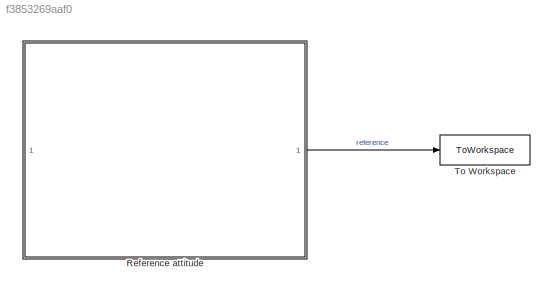
MODEL slx_f3853269aaf0
KIND model
CONFIG AbsTol = auto
CONFIG EnableMultiTasking = off
CONFIG FixedStep = auto
CONFIG MaxStep = auto
CONFIG MinStep = auto
CONFIG RelTol = 1e-3
CONFIG SampleTimeConstraint = Unconstrained
CONFIG SolverName = VariableStepAuto
CONFIG StartTime = 0.0
CONFIG StopTime = 10.0
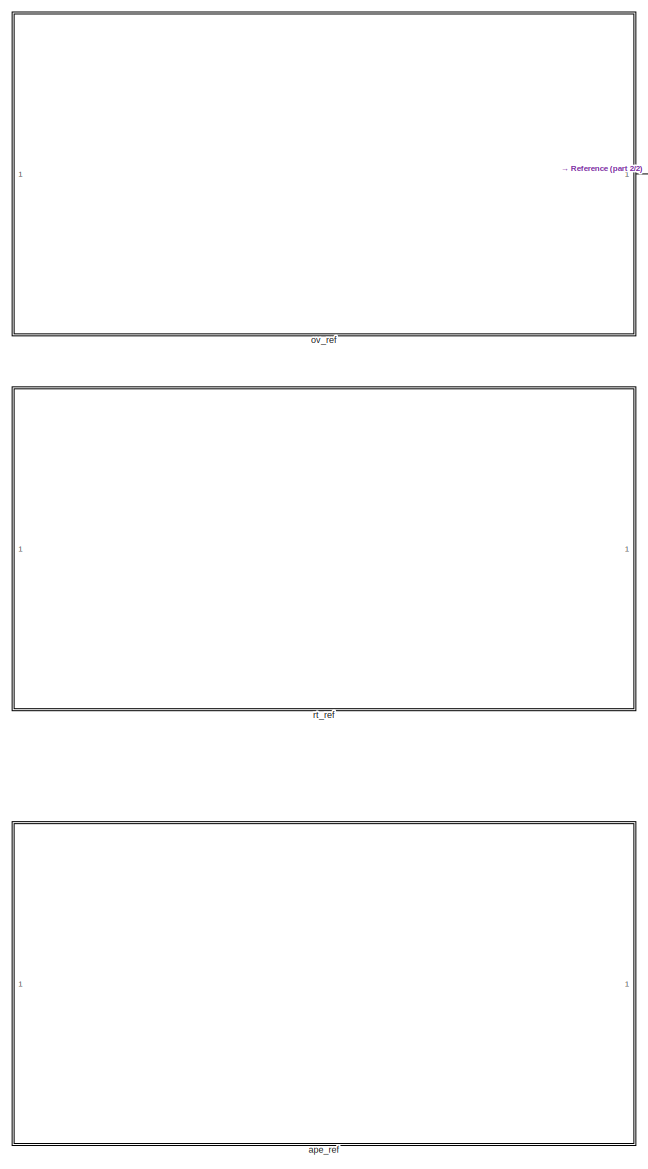
[diagram: Reference attitude - part 1/2, left side, full height]
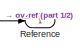
[diagram: Reference attitude - part 2/2, top right region]
BLOCK [SubSystem] Reference attitude
BLOCK [Outport] Reference attitude/Reference
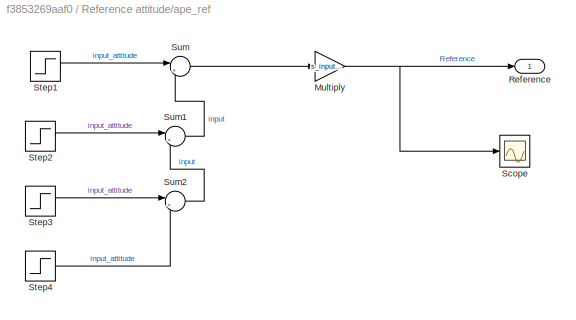
BLOCK [SubSystem] Reference attitude/ape_ref
BLOCK [Gain] Reference attitude/ape_ref/Multiply
  Gain = s_input.ape.gain
BLOCK [Outport] Reference attitude/ape_ref/Reference
BLOCK [Scope] Reference attitude/ape_ref/Scope
  ActiveDisplayYMaximum = 1
  ActiveDisplayYMinimum = -1
  DataLoggingVariableName = ScopeData4
  Floating = off
  GraphicalSettings = {"Style":{"BackgroundColor":[0.12941176470588237,0.12941176470588237,0.12941176470588237],"AxesColor":[0.07058823529411765,0.07058823529411765,0.07058823529411765],"LabelsColor":[0.8509803921568627,0.8509803921568627,0.8509803921568627],"PreserveColors":false,"Visible":[true],"LineStyle":["-"],"LineWidth":[1.5],"BarWidth":[0.9],"LineColor":["auto"],"LineFaceAlpha":[1],"LineEdgeAlpha":[1],"Marker":...<+1906ch>
  MultipleDisplayCache = [{"MaxYLimMag":1,"MaxYLimReal":1,"MinYLimMag":0,"MinYLimReal":-1,"PlotAsMagnitudePhase":false,"ShowGrid":true,"ShowLegend":false,"Title":"%<SignalLabel>","YLabel":""}]
  NumInputPorts = 1
  ScopeFrameLocation = window
  WasSavedAsWebScope = on
  WindowPosition = [1202.000000,383.000000,560.000000,420.000000,]
BLOCK [Step] Reference attitude/ape_ref/Step1
  After = s_input.ape.step_1.size
  SampleTime = Ts
  Time = s_input.ape.step_1.time
BLOCK [Step] Reference attitude/ape_ref/Step2
  After = s_input.ape.step_2.size
  SampleTime = Ts
  Time = s_input.ape.step_2.time
BLOCK [Step] Reference attitude/ape_ref/Step3
  After = s_input.ape.step_3.size
  SampleTime = Ts
  Time = s_input.ape.step_3.time
BLOCK [Step] Reference attitude/ape_ref/Step4
  After = s_input.ape.step_4.size
  SampleTime = Ts
  Time = s_input.ape.step_4.time
BLOCK [Sum] Reference attitude/ape_ref/Sum
  Inputs = |++
BLOCK [Sum] Reference attitude/ape_ref/Sum1
  Inputs = |++
BLOCK [Sum] Reference attitude/ape_ref/Sum2
  Inputs = |++
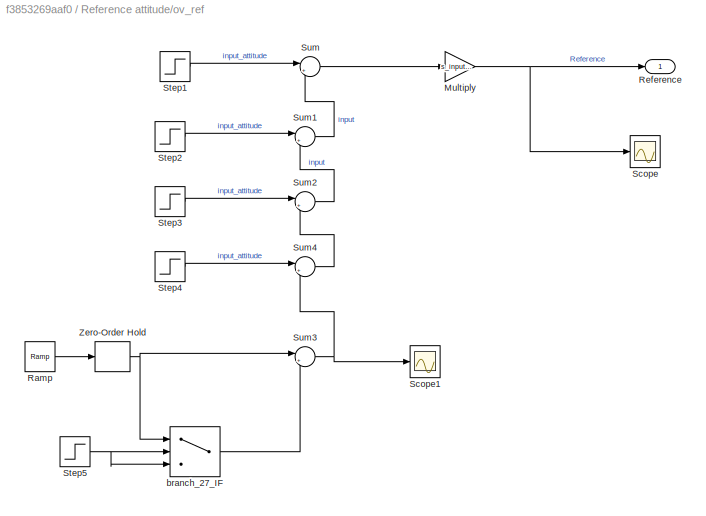
BLOCK [SubSystem] Reference attitude/ov_ref
BLOCK [Gain] Reference attitude/ov_ref/Multiply
  Gain = s_input.ov.gain
BLOCK [Reference] Reference attitude/ov_ref/Ramp  REF=simulink/Sources/Ramp
  SourceBlock = simulink/Sources/Ramp
  SourceType = Ramp
BLOCK [Outport] Reference attitude/ov_ref/Reference
BLOCK [Scope] Reference attitude/ov_ref/Scope
  ActiveDisplayYMaximum = 78.275517903912672
  ActiveDisplayYMinimum = -31.173012433294765
  DataLoggingVariableName = ScopeData4
  Floating = off
  GraphicalSettings = {"AxesScalingProperties":{"AlignXAxis":"Center","AlignYAxis":"Center","AutoScaleXAxisLimits":false,"AxesScaling":"Manual","AxesScalingNumUpdates":10,"ExpandOnly":true,"ScaleAxesLimitsAtStop":false,"XAxisDataRange":100,"YAxisDataRange":80},"DisplayProperties":{"ColorOrder":["auto","auto","auto","auto","auto","auto","auto","auto","auto","auto","auto","auto","auto","auto","auto","auto","auto","auto",...<+1986ch>
  MultipleDisplayCache = [{"MaxYLimMag":37.125,"MaxYLimReal":78.275517903912672,"MinYLimMag":0,"MinYLimReal":-31.173012433294765,"PlotAsMagnitudePhase":false,"ShowGrid":true,"ShowLegend":false,"Title":"%<SignalLabel>","YLabel":""}]
  NumInputPorts = 1
  ScopeFrameLocation = window
  WasSavedAsWebScope = on
  WindowPosition = [1202.000000,494.000000,560.000000,420.000000,]
BLOCK [Scope] Reference attitude/ov_ref/Scope1
  ActiveDisplayYMaximum = 31.656047020778054
  ActiveDisplayYMinimum = -11.656452979221982
  DataLoggingVariableName = ScopeData6
  Floating = off
  GraphicalSettings = {"AxesScalingProperties":{"AlignXAxis":"Center","AlignYAxis":"Center","AutoScaleXAxisLimits":false,"AxesScaling":"Manual","AxesScalingNumUpdates":10,"ExpandOnly":true,"ScaleAxesLimitsAtStop":false,"XAxisDataRange":100,"YAxisDataRange":80},"DisplayProperties":{"ColorOrder":["auto","auto","auto","auto","auto","auto","auto","auto","auto","auto","auto","auto","auto","auto","auto","auto","auto","auto",...<+1976ch>
  MultipleDisplayCache = [{"MaxYLimMag":37.125,"MaxYLimReal":31.656047020778054,"MinYLimMag":0,"MinYLimReal":-11.656452979221982,"PlotAsMagnitudePhase":false,"ShowGrid":true,"ShowLegend":false,"Title":"%<SignalLabel>","YLabel":""}]
  NumInputPorts = 1
  ScopeFrameLocation = window
  WasSavedAsWebScope = on
  WindowPosition = [1202.000000,494.000000,560.000000,420.000000,]
BLOCK [Step] Reference attitude/ov_ref/Step1
  After = s_input.ov.step_1.size
  SampleTime = Ts
  Time = s_input.ov.step_1.time
BLOCK [Step] Reference attitude/ov_ref/Step2
  After = s_input.ov.step_2.size
  SampleTime = Ts
  Time = s_input.ov.step_2.time
BLOCK [Step] Reference attitude/ov_ref/Step3
  After = s_input.ov.step_3.size
  SampleTime = Ts
  Time = s_input.ov.step_3.time
BLOCK [Step] Reference attitude/ov_ref/Step4
  After = s_input.ov.step_4.size
  SampleTime = Ts
  Time = s_input.ov.step_4.time
BLOCK [Step] Reference attitude/ov_ref/Step5
  SampleTime = Ts
  Time = 8.5
BLOCK [Sum] Reference attitude/ov_ref/Sum
  Inputs = |++
BLOCK [Sum] Reference attitude/ov_ref/Sum1
  Inputs = |++
BLOCK [Sum] Reference attitude/ov_ref/Sum2
  Inputs = |++
BLOCK [Sum] Reference attitude/ov_ref/Sum3
  Inputs = |+-
BLOCK [Sum] Reference attitude/ov_ref/Sum4
  Inputs = |++
BLOCK [ZeroOrderHold] Reference attitude/ov_ref/Zero-Order Hold
  SampleTime = Ts
BLOCK [Switch] Reference attitude/ov_ref/branch_27_IF
  Criteria = u2 ~= 0
  InputSameDT = off
  SaturateOnIntegerOverflow = off
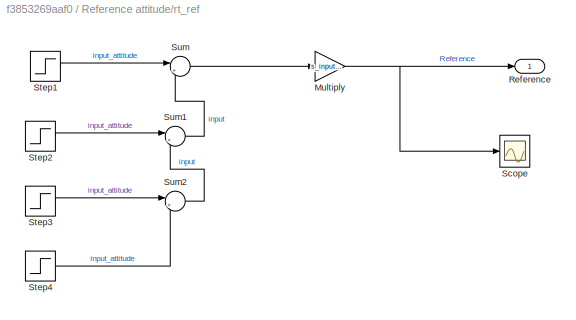
BLOCK [SubSystem] Reference attitude/rt_ref
BLOCK [Gain] Reference attitude/rt_ref/Multiply
  Gain = s_input.rt.gain
BLOCK [Outport] Reference attitude/rt_ref/Reference
BLOCK [Scope] Reference attitude/rt_ref/Scope
  ActiveDisplayYMaximum = 1
  ActiveDisplayYMinimum = -1
  DataLoggingVariableName = ScopeData4
  Floating = off
  GraphicalSettings = {"Style":{"BackgroundColor":[0.12941176470588237,0.12941176470588237,0.12941176470588237],"AxesColor":[0.07058823529411765,0.07058823529411765,0.07058823529411765],"LabelsColor":[0.8509803921568627,0.8509803921568627,0.8509803921568627],"PreserveColors":false,"Visible":[true],"LineStyle":["-"],"LineWidth":[1.5],"BarWidth":[0.9],"LineColor":["auto"],"LineFaceAlpha":[1],"LineEdgeAlpha":[1],"Marker":...<+1906ch>
  MultipleDisplayCache = [{"MaxYLimMag":1,"MaxYLimReal":1,"MinYLimMag":0,"MinYLimReal":-1,"PlotAsMagnitudePhase":false,"ShowGrid":true,"ShowLegend":false,"Title":"%<SignalLabel>","YLabel":""}]
  NumInputPorts = 1
  ScopeFrameLocation = window
  WasSavedAsWebScope = on
  WindowPosition = [1202.000000,383.000000,560.000000,420.000000,]
BLOCK [Step] Reference attitude/rt_ref/Step1
  After = s_input.rt.step_1.size
  SampleTime = Ts
  Time = s_input.rt.step_1.time
BLOCK [Step] Reference attitude/rt_ref/Step2
  After = s_input.rt.step_2.size
  SampleTime = Ts
  Time = s_input.rt.step_2.time
BLOCK [Step] Reference attitude/rt_ref/Step3
  After = s_input.rt.step_3.size
  SampleTime = Ts
  Time = s_input.rt.step_3.time
BLOCK [Step] Reference attitude/rt_ref/Step4
  After = s_input.rt.step_4.size
  SampleTime = Ts
  Time = s_input.rt.step_4.time
BLOCK [Sum] Reference attitude/rt_ref/Sum
  Inputs = |++
BLOCK [Sum] Reference attitude/rt_ref/Sum1
  Inputs = |++
BLOCK [Sum] Reference attitude/rt_ref/Sum2
  Inputs = |++
BLOCK [ToWorkspace] To Workspace
  FixptAsFi = on
  MaxDataPoints = inf
  SampleTime = -1
  SaveFormat = Timeseries
  VariableName = simout
NET Reference attitude/ape_ref/Multiply:1 -> Reference attitude/ape_ref/Reference:1, Reference attitude/ape_ref/Scope:1
LINE Reference attitude/ape_ref/Step1:1 -> Reference attitude/ape_ref/Sum:1
LINE Reference attitude/ape_ref/Step2:1 -> Reference attitude/ape_ref/Sum1:1
LINE Reference attitude/ape_ref/Step3:1 -> Reference attitude/ape_ref/Sum2:1
LINE Reference attitude/ape_ref/Step4:1 -> Reference attitude/ape_ref/Sum2:2
LINE Reference attitude/ape_ref/Sum1:1 -> Reference attitude/ape_ref/Sum:2
LINE Reference attitude/ape_ref/Sum2:1 -> Reference attitude/ape_ref/Sum1:2
LINE Reference attitude/ape_ref/Sum:1 -> Reference attitude/ape_ref/Multiply:1
NET Reference attitude/ov_ref/Multiply:1 -> Reference attitude/ov_ref/Reference:1, Reference attitude/ov_ref/Scope:1
LINE Reference attitude/ov_ref/Ramp:1 -> Reference attitude/ov_ref/Zero-Order Hold:1
LINE Reference attitude/ov_ref/Step1:1 -> Reference attitude/ov_ref/Sum:1
LINE Reference attitude/ov_ref/Step2:1 -> Reference attitude/ov_ref/Sum1:1
LINE Reference attitude/ov_ref/Step3:1 -> Reference attitude/ov_ref/Sum2:1
LINE Reference attitude/ov_ref/Step4:1 -> Reference attitude/ov_ref/Sum4:1
NET Reference attitude/ov_ref/Step5:1 -> Reference attitude/ov_ref/branch_27_IF:2, Reference attitude/ov_ref/branch_27_IF:3
LINE Reference attitude/ov_ref/Sum1:1 -> Reference attitude/ov_ref/Sum:2
LINE Reference attitude/ov_ref/Sum2:1 -> Reference attitude/ov_ref/Sum1:2
NET Reference attitude/ov_ref/Sum3:1 -> Reference attitude/ov_ref/Scope1:1, Reference attitude/ov_ref/Sum4:2
LINE Reference attitude/ov_ref/Sum4:1 -> Reference attitude/ov_ref/Sum2:2
LINE Reference attitude/ov_ref/Sum:1 -> Reference attitude/ov_ref/Multiply:1
NET Reference attitude/ov_ref/Zero-Order Hold:1 -> Reference attitude/ov_ref/Sum3:1, Reference attitude/ov_ref/branch_27_IF:1
LINE Reference attitude/ov_ref/branch_27_IF:1 -> Reference attitude/ov_ref/Sum3:2
LINE Reference attitude/ov_ref:1 -> Reference attitude/Reference:1
NET Reference attitude/rt_ref/Multiply:1 -> Reference attitude/rt_ref/Reference:1, Reference attitude/rt_ref/Scope:1
LINE Reference attitude/rt_ref/Step1:1 -> Reference attitude/rt_ref/Sum:1
LINE Reference attitude/rt_ref/Step2:1 -> Reference attitude/rt_ref/Sum1:1
LINE Reference attitude/rt_ref/Step3:1 -> Reference attitude/rt_ref/Sum2:1
LINE Reference attitude/rt_ref/Step4:1 -> Reference attitude/rt_ref/Sum2:2
LINE Reference attitude/rt_ref/Sum1:1 -> Reference attitude/rt_ref/Sum:2
LINE Reference attitude/rt_ref/Sum2:1 -> Reference attitude/rt_ref/Sum1:2
LINE Reference attitude/rt_ref/Sum:1 -> Reference attitude/rt_ref/Multiply:1
LINE Reference attitude:1 -> To Workspace:1
note: NET lines group one-source signal fan-out (src -> all destinations, sorted); 1:1 wires keep LINE
